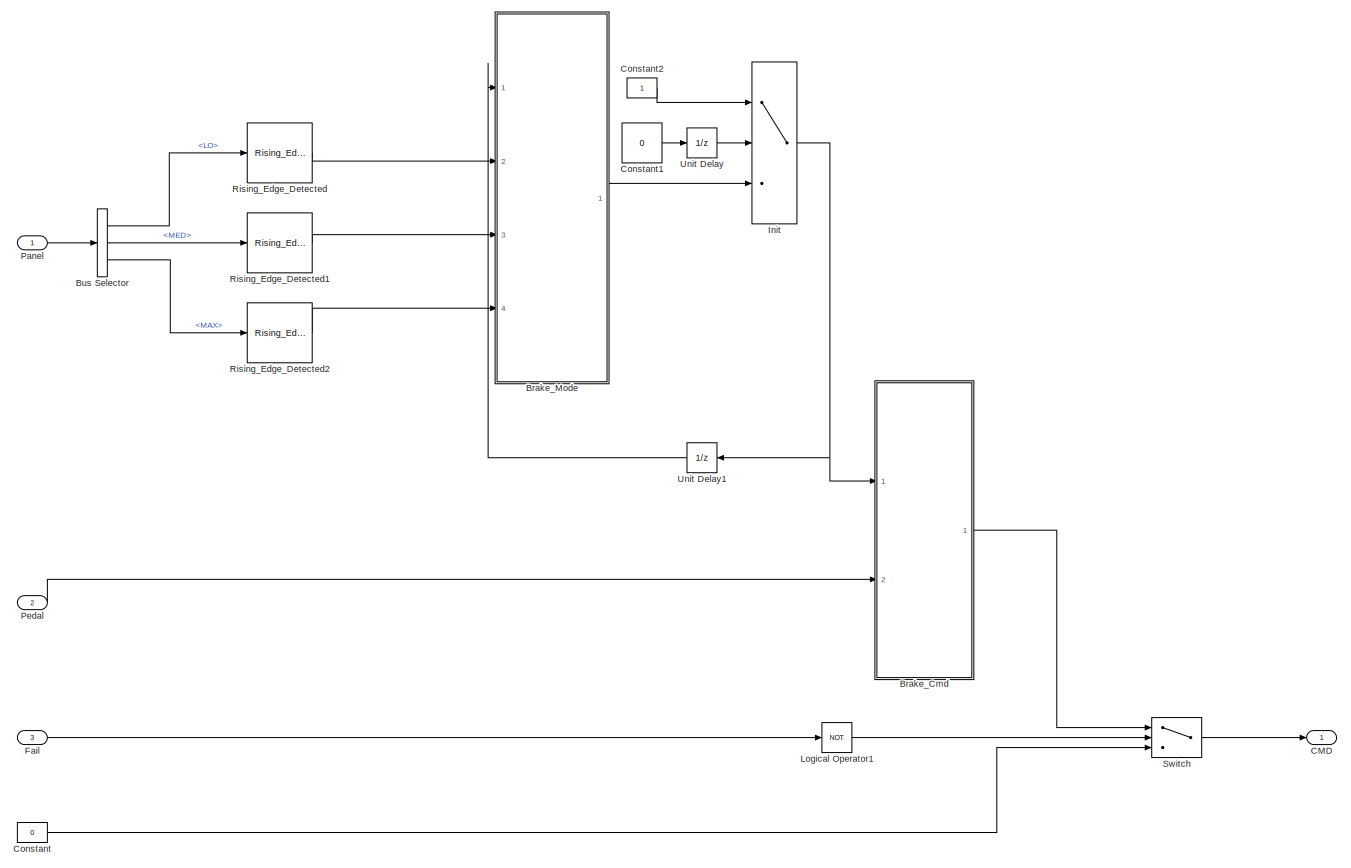
[diagram: root canvas - part 1/1, most of the canvas]
MODEL slx_b7fdb6952ef2
KIND model
CONFIG AbsTol = auto
CONFIG FixedStep = auto
CONFIG MaxStep = auto
CONFIG MinStep = auto
CONFIG RelTol = 1e-3
CONFIG SampleTimeConstraint = Unconstrained
CONFIG Solver = FixedStepDiscrete
CONFIG SolverMode = Auto
CONFIG SolverName = FixedStepDiscrete
CONFIG StartTime = 0.0
CONFIG StopTime = 10.0
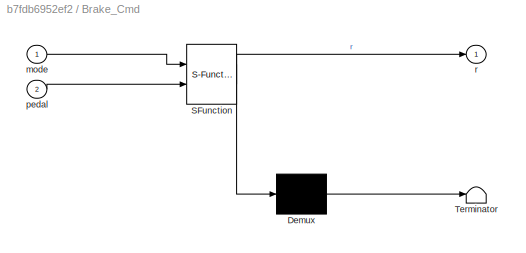
BLOCK [SubSystem] Brake_Cmd
  ErrorFcn = Stateflow.Translate.translate
  PermitHierarchicalResolution = ExplicitOnly
  Ports = [2, 1]
  RequestExecContextInheritance = off
  SFBlockType = Chart
  TreatAsAtomicUnit = on
  Variant = off
BLOCK [Demux] Brake_Cmd/ Demux 
  Outputs = 1
  Ports = [1, 1]
BLOCK [S-Function] Brake_Cmd/ SFunction 
  EnableBusSupport = on
  FunctionName = sf_sfun
  Parameters = BRAKE_PRESSURE_LO,BRAKE_PRESSURE_MAX,BRAKE_PRESSURE_MED,LO,MANUAL,MAX,MED
  PortCounts = [2 2]
  Ports = [2, 2]
  SFunctionDeploymentMode = off
  Tag = Stateflow S-Function COM_Functional_sl 1
BLOCK [Terminator] Brake_Cmd/ Terminator 
BLOCK [Inport] Brake_Cmd/mode
  IconDisplay = Port number
BLOCK [Inport] Brake_Cmd/pedal
  IconDisplay = Port number
  Port = 2
BLOCK [Outport] Brake_Cmd/r
  IconDisplay = Port number
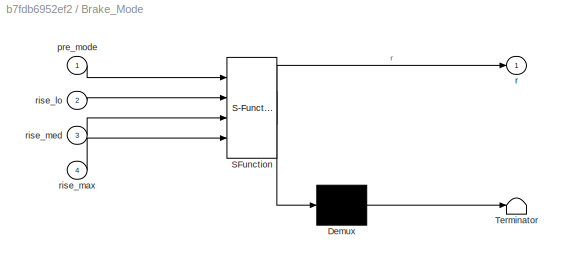
BLOCK [SubSystem] Brake_Mode
  ErrorFcn = Stateflow.Translate.translate
  PermitHierarchicalResolution = ExplicitOnly
  Ports = [4, 1]
  RequestExecContextInheritance = off
  SFBlockType = Chart
  TreatAsAtomicUnit = on
  Variant = off
BLOCK [Demux] Brake_Mode/ Demux 
  Outputs = 1
  Ports = [1, 1]
BLOCK [S-Function] Brake_Mode/ SFunction 
  EnableBusSupport = on
  FunctionName = sf_sfun
  Parameters = LO,MANUAL,MAX,MED
  PortCounts = [4 2]
  Ports = [4, 2]
  SFunctionDeploymentMode = off
  Tag = Stateflow S-Function COM_Functional_sl 2
BLOCK [Terminator] Brake_Mode/ Terminator 
BLOCK [Inport] Brake_Mode/pre_mode
  IconDisplay = Port number
BLOCK [Outport] Brake_Mode/r
  IconDisplay = Port number
BLOCK [Inport] Brake_Mode/rise_lo
  IconDisplay = Port number
  Port = 2
BLOCK [Inport] Brake_Mode/rise_max
  IconDisplay = Port number
  Port = 4
BLOCK [Inport] Brake_Mode/rise_med
  IconDisplay = Port number
  Port = 3
BLOCK [BusSelector] Bus Selector
  OutputSignals = LO,MED,MAX
  Ports = [1, 3]
BLOCK [Outport] CMD
  IconDisplay = Port number
  OutDataTypeStr = int32
BLOCK [Constant] Constant
  OutDataTypeStr = int32
  Value = 0
BLOCK [Constant] Constant1
  DisableCoverage = on
  OutDataTypeStr = boolean
  Value = 0
BLOCK [Constant] Constant2
  OutDataTypeStr = int32
BLOCK [Inport] Fail
  IconDisplay = Port number
  Interpolate = off
  OutDataTypeStr = boolean
  Port = 3
  SampleTime = dt
BLOCK [Switch] Init
  Criteria = u2 ~= 0
  OutDataTypeStr = Inherit: Inherit via back propagation
  SaturateOnIntegerOverflow = off
  ZeroCross = off
BLOCK [Logic] Logical Operator1
  Operator = NOT
  OutDataTypeStr = boolean
  Ports = [1, 1]
BLOCK [Inport] Panel
  IconDisplay = Port number
  OutDataTypeStr = Bus: PanelMsgImpl
BLOCK [Inport] Pedal
  IconDisplay = Port number
  Interpolate = off
  OutDataTypeStr = int32
  Port = 2
  SampleTime = dt
BLOCK [Reference] Rising_Edge_Detected  REF=BSCU_lib/Rising_Edge_Detected
  Ports = [1, 1]
  SourceBlock = BSCU_lib/Rising_Edge_Detected
  SourceType = SubSystem
BLOCK [Reference] Rising_Edge_Detected1  REF=BSCU_lib/Rising_Edge_Detected
  Ports = [1, 1]
  SourceBlock = BSCU_lib/Rising_Edge_Detected
  SourceType = SubSystem
BLOCK [Reference] Rising_Edge_Detected2  REF=BSCU_lib/Rising_Edge_Detected
  Ports = [1, 1]
  SourceBlock = BSCU_lib/Rising_Edge_Detected
  SourceType = SubSystem
BLOCK [Switch] Switch
  Description = May be used within well defined functions, or functions that soley define logical expressions.
  SaturateOnIntegerOverflow = off
  Threshold = .5
  ZeroCross = off
BLOCK [UnitDelay] Unit Delay
  AttributesFormatString = <Init = %<InitialCondition>>
  InitialCondition = 1
  InputProcessing = Elements as channels (sample based)
  SampleTime = -1
BLOCK [UnitDelay] Unit Delay1
  AttributesFormatString = <Init = %<InitialCondition>>
  InitialCondition = 1
  InputProcessing = Elements as channels (sample based)
  SampleTime = -1
LINE Brake_Cmd:1 -> Switch:1
LINE Brake_Mode:1 -> Init:3
LINE Bus Selector:1 -> Rising_Edge_Detected:1
LINE Bus Selector:2 -> Rising_Edge_Detected1:1
LINE Bus Selector:3 -> Rising_Edge_Detected2:1
LINE Constant1:1 -> Unit Delay:1
LINE Constant2:1 -> Init:1
LINE Constant:1 -> Switch:3
LINE Fail:1 -> Logical Operator1:1
NET Init:1 -> Brake_Cmd:1, Unit Delay1:1
LINE Logical Operator1:1 -> Switch:2
LINE Panel:1 -> Bus Selector:1
LINE Pedal:1 -> Brake_Cmd:2
LINE Rising_Edge_Detected1:1 -> Brake_Mode:3
LINE Rising_Edge_Detected2:1 -> Brake_Mode:4
LINE Rising_Edge_Detected:1 -> Brake_Mode:2
LINE Switch:1 -> CMD:1
LINE Unit Delay1:1 -> Brake_Mode:1
LINE Unit Delay:1 -> Init:2
note: NET lines group one-source signal fan-out (src -> all destinations, sorted); 1:1 wires keep LINE
CHART Brake_Cmd states=0 transitions=15
CHART Brake_Mode states=0 transitions=18
